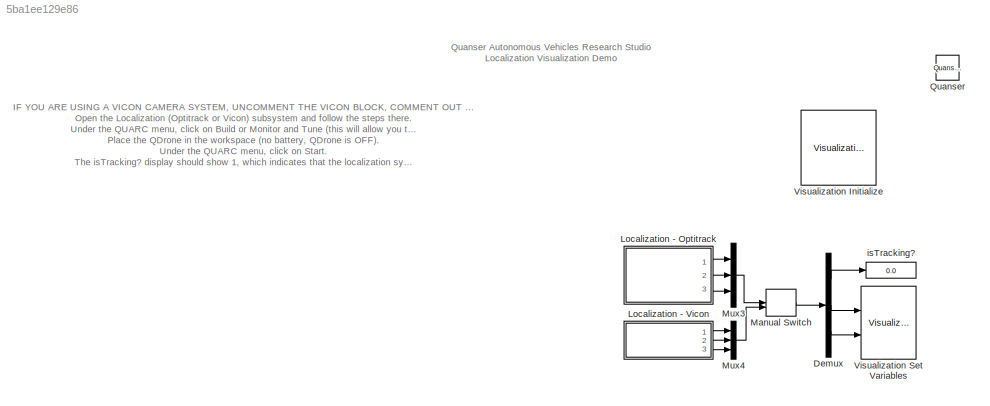
MODEL slx_5ba1ee129e86
KIND model
CONFIG AbsTol = auto
CONFIG EnableMultiTasking = on
CONFIG FixedStep = 0.001
CONFIG MaxStep = auto
CONFIG MinStep = auto
CONFIG RelTol = 1e-3
CONFIG SampleTimeConstraint = Unconstrained
CONFIG Solver = FixedStepDiscrete
CONFIG SolverName = FixedStepDiscrete
CONFIG StartTime = 0.0
CONFIG StopTime = inf
BLOCK [Demux] Demux
  Outputs = [1 3 3]
  Ports = [1, 3]
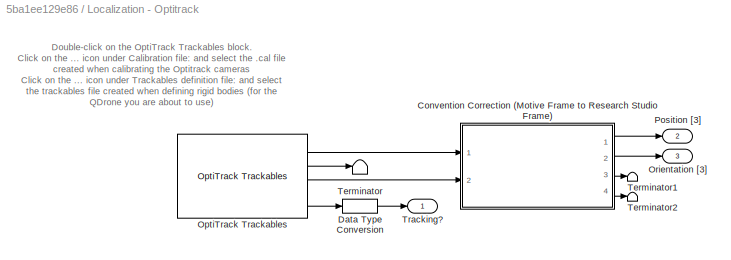
BLOCK [SubSystem] Localization - Optitrack
  Ports = [0, 3]
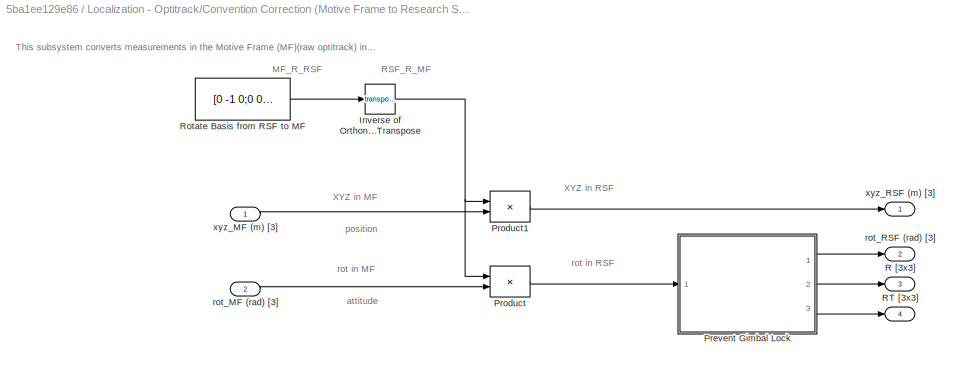
BLOCK [SubSystem] Localization - Optitrack/Convention Correction (Motive Frame to Research Studio Frame)
  Ports = [2, 4]
BLOCK [Math] Localization - Optitrack/Convention Correction (Motive Frame to Research Studio Frame)/Inverse of Orthonormal Matrix is its Transpose
  Operator = transpose
  Ports = [1, 1]
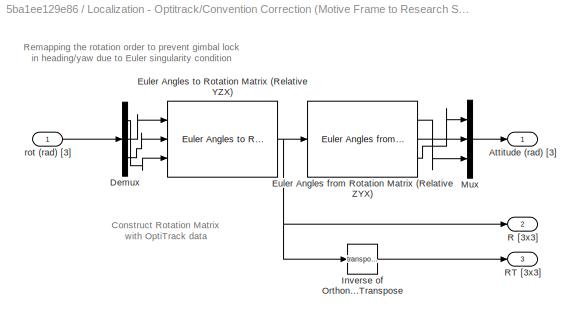
BLOCK [SubSystem] Localization - Optitrack/Convention Correction (Motive Frame to Research Studio Frame)/Prevent Gimbal Lock
  Ports = [1, 3]
BLOCK [Outport] Localization - Optitrack/Convention Correction (Motive Frame to Research Studio Frame)/Prevent Gimbal Lock/Attitude (rad) [3]
  VectorParamsAs1DForOutWhenUnconnected = off
BLOCK [Demux] Localization - Optitrack/Convention Correction (Motive Frame to Research Studio Frame)/Prevent Gimbal Lock/Demux
  Outputs = 3
  Ports = [1, 3]
BLOCK [Reference] Localization - Optitrack/Convention Correction (Motive Frame to Research Studio Frame)/Prevent Gimbal Lock/Euler Angles from Rotation Matrix (Relative ZYX)  REF=quarc_library/Math Operations/Matrices/Euler Angles from
Rotation Matrix
  Ports = [1, 3]
  SourceBlock = quarc_library/Math Operations/Matrices/Euler Angles from\nRotation Matrix
  SourceProductName = QUARC Targets
  SourceType = Euler Angles from Rotation Matrix
BLOCK [Reference] Localization - Optitrack/Convention Correction (Motive Frame to Research Studio Frame)/Prevent Gimbal Lock/Euler Angles to Rotation Matrix (Relative YZX)  REF=quarc_library/Math Operations/Matrices/Euler Angles to
Rotation Matrix
  Ports = [3, 1]
  SourceBlock = quarc_library/Math Operations/Matrices/Euler Angles to\nRotation Matrix
  SourceProductName = QUARC Targets
  SourceType = Euler Angles to Rotation Matrix
BLOCK [Math] Localization - Optitrack/Convention Correction (Motive Frame to Research Studio Frame)/Prevent Gimbal Lock/Inverse of Orthonormal Matrix is its Transpose
  Operator = transpose
  Ports = [1, 1]
BLOCK [Mux] Localization - Optitrack/Convention Correction (Motive Frame to Research Studio Frame)/Prevent Gimbal Lock/Mux
  DisplayOption = bar
  Inputs = 3
  Ports = [3, 1]
BLOCK [Outport] Localization - Optitrack/Convention Correction (Motive Frame to Research Studio Frame)/Prevent Gimbal Lock/R [3x3]
  Port = 2
  VectorParamsAs1DForOutWhenUnconnected = off
BLOCK [Outport] Localization - Optitrack/Convention Correction (Motive Frame to Research Studio Frame)/Prevent Gimbal Lock/RT [3x3]
  Port = 3
  VectorParamsAs1DForOutWhenUnconnected = off
BLOCK [Inport] Localization - Optitrack/Convention Correction (Motive Frame to Research Studio Frame)/Prevent Gimbal Lock/rot (rad) [3]
BLOCK [Product] Localization - Optitrack/Convention Correction (Motive Frame to Research Studio Frame)/Product
  Multiplication = Matrix(*)
  Ports = [2, 1]
BLOCK [Product] Localization - Optitrack/Convention Correction (Motive Frame to Research Studio Frame)/Product1
  Multiplication = Matrix(*)
  Ports = [2, 1]
BLOCK [Outport] Localization - Optitrack/Convention Correction (Motive Frame to Research Studio Frame)/R [3x3]
  Port = 3
  VectorParamsAs1DForOutWhenUnconnected = off
BLOCK [Outport] Localization - Optitrack/Convention Correction (Motive Frame to Research Studio Frame)/RT [3x3]
  Port = 4
  VectorParamsAs1DForOutWhenUnconnected = off
BLOCK [Constant] Localization - Optitrack/Convention Correction (Motive Frame to Research Studio Frame)/Rotate Basis from RSF to MF
  Value = [0 -1 0;0 0 1;-1 0 0]
BLOCK [Inport] Localization - Optitrack/Convention Correction (Motive Frame to Research Studio Frame)/rot_MF (rad) [3]
  Port = 2
BLOCK [Outport] Localization - Optitrack/Convention Correction (Motive Frame to Research Studio Frame)/rot_RSF (rad) [3]
  Port = 2
  VectorParamsAs1DForOutWhenUnconnected = off
BLOCK [Inport] Localization - Optitrack/Convention Correction (Motive Frame to Research Studio Frame)/xyz_MF (m) [3]
BLOCK [Outport] Localization - Optitrack/Convention Correction (Motive Frame to Research Studio Frame)/xyz_RSF (m) [3]
  VectorParamsAs1DForOutWhenUnconnected = off
BLOCK [DataTypeConversion] Localization - Optitrack/Data Type Conversion
  RndMeth = Floor
  SaturateOnIntegerOverflow = off
BLOCK [Reference] Localization - Optitrack/OptiTrack Trackables  REF=quarc_library/Devices/Third-Party/NaturalPoint/OptiTrack/OptiTrack Trackables
  Ports = [0, 4]
  SourceBlock = quarc_library/Devices/Third-Party/NaturalPoint/OptiTrack/OptiTrack Trackables
  SourceProductName = QUARC Targets
  SourceType = OptiTrack Rigid Body Position
BLOCK [Outport] Localization - Optitrack/Orientation [3]
  Port = 3
  VectorParamsAs1DForOutWhenUnconnected = off
BLOCK [Outport] Localization - Optitrack/Position [3]
  Port = 2
  VectorParamsAs1DForOutWhenUnconnected = off
BLOCK [Terminator] Localization - Optitrack/Terminator
BLOCK [Terminator] Localization - Optitrack/Terminator1
BLOCK [Terminator] Localization - Optitrack/Terminator2
BLOCK [Outport] Localization - Optitrack/Tracking?
  VectorParamsAs1DForOutWhenUnconnected = off
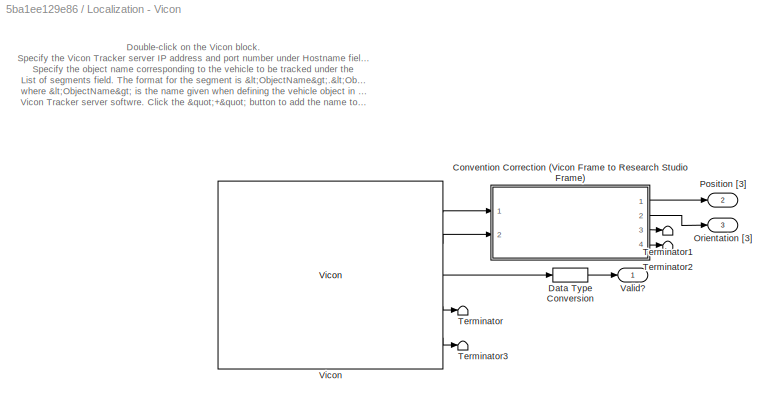
BLOCK [SubSystem] Localization - Vicon
  Commented = on
  Ports = [0, 3]
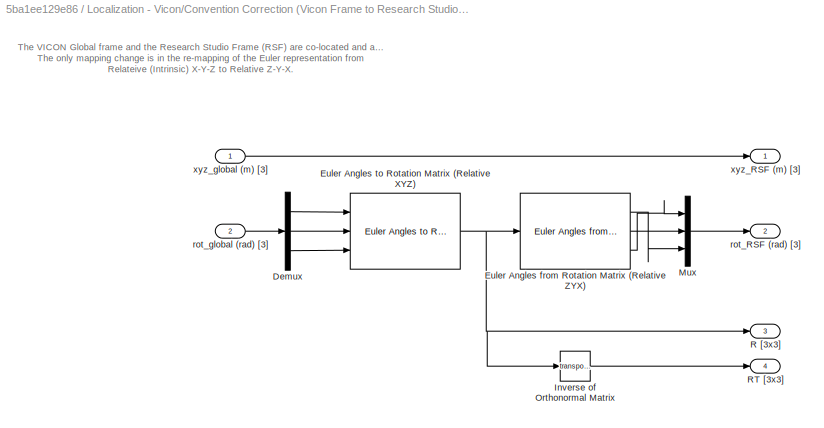
BLOCK [SubSystem] Localization - Vicon/Convention Correction (Vicon Frame to Research Studio Frame)
  Ports = [2, 4]
BLOCK [Demux] Localization - Vicon/Convention Correction (Vicon Frame to Research Studio Frame)/Demux
  Outputs = 3
  Ports = [1, 3]
BLOCK [Reference] Localization - Vicon/Convention Correction (Vicon Frame to Research Studio Frame)/Euler Angles from Rotation Matrix (Relative ZYX)  REF=quarc_library/Math Operations/Matrices/Euler Angles from
Rotation Matrix
  Ports = [1, 3]
  SourceBlock = quarc_library/Math Operations/Matrices/Euler Angles from\nRotation Matrix
  SourceProductName = QUARC Targets
  SourceType = Euler Angles from Rotation Matrix
BLOCK [Reference] Localization - Vicon/Convention Correction (Vicon Frame to Research Studio Frame)/Euler Angles to Rotation Matrix (Relative XYZ)  REF=quarc_library/Math Operations/Matrices/Euler Angles to
Rotation Matrix
  Ports = [3, 1]
  SourceBlock = quarc_library/Math Operations/Matrices/Euler Angles to\nRotation Matrix
  SourceProductName = QUARC Targets
  SourceType = Euler Angles to Rotation Matrix
BLOCK [Math] Localization - Vicon/Convention Correction (Vicon Frame to Research Studio Frame)/Inverse of Orthonormal Matrix
  Operator = transpose
  Ports = [1, 1]
BLOCK [Mux] Localization - Vicon/Convention Correction (Vicon Frame to Research Studio Frame)/Mux
  DisplayOption = bar
  Inputs = 3
  Ports = [3, 1]
BLOCK [Outport] Localization - Vicon/Convention Correction (Vicon Frame to Research Studio Frame)/R [3x3]
  Port = 3
  VectorParamsAs1DForOutWhenUnconnected = off
BLOCK [Outport] Localization - Vicon/Convention Correction (Vicon Frame to Research Studio Frame)/RT [3x3]
  Port = 4
  VectorParamsAs1DForOutWhenUnconnected = off
BLOCK [Outport] Localization - Vicon/Convention Correction (Vicon Frame to Research Studio Frame)/rot_RSF (rad) [3]
  Port = 2
  VectorParamsAs1DForOutWhenUnconnected = off
BLOCK [Inport] Localization - Vicon/Convention Correction (Vicon Frame to Research Studio Frame)/rot_global (rad) [3]
  Port = 2
BLOCK [Outport] Localization - Vicon/Convention Correction (Vicon Frame to Research Studio Frame)/xyz_RSF (m) [3]
  VectorParamsAs1DForOutWhenUnconnected = off
BLOCK [Inport] Localization - Vicon/Convention Correction (Vicon Frame to Research Studio Frame)/xyz_global (m) [3]
BLOCK [DataTypeConversion] Localization - Vicon/Data Type Conversion
  RndMeth = Floor
  SaturateOnIntegerOverflow = off
BLOCK [Outport] Localization - Vicon/Orientation [3]
  Port = 3
  VectorParamsAs1DForOutWhenUnconnected = off
BLOCK [Outport] Localization - Vicon/Position [3]
  Port = 2
  VectorParamsAs1DForOutWhenUnconnected = off
BLOCK [Terminator] Localization - Vicon/Terminator
BLOCK [Terminator] Localization - Vicon/Terminator1
BLOCK [Terminator] Localization - Vicon/Terminator2
BLOCK [Terminator] Localization - Vicon/Terminator3
BLOCK [Outport] Localization - Vicon/Valid?
  VectorParamsAs1DForOutWhenUnconnected = off
BLOCK [Reference] Localization - Vicon/Vicon  REF=quarc_library/Devices/Third-Party/Vicon/Vicon
  Ports = [0, 5]
  SourceBlock = quarc_library/Devices/Third-Party/Vicon/Vicon
  SourceProductName = QUARC Targets
  SourceType = Vicon
BLOCK [ManualSwitch] Manual Switch
BLOCK [Mux] Mux3
  DisplayOption = bar
  Inputs = [1 3 3]
  Ports = [3, 1]
BLOCK [Mux] Mux4
  DisplayOption = bar
  Inputs = [1 3 3]
  Ports = [3, 1]
BLOCK [Reference] Quanser  REF=quarc_library/Logos/Quanser
  Ports = []
  SourceBlock = quarc_library/Logos/Quanser
  SourceProductName = QUARC Targets
  SourceType = Powered by Quanser
BLOCK [Reference] Visualization Initialize  REF=quarc_library/User Interface/Visualization/Visualization Initialize
  AttributesFormatString = %<object_name>
  Ports = []
  SourceBlock = quarc_library/User Interface/Visualization/Visualization Initialize
  SourceProductName = QUARC Targets
  SourceType = Visualization Initialize
BLOCK [Reference] Visualization Set Variables  REF=quarc_library/User Interface/Visualization/Visualization Set Variables
  AttributesFormatString = (%<object_name>)
  Ports = [2]
  SourceBlock = quarc_library/User Interface/Visualization/Visualization Set Variables
  SourceProductName = QUARC Targets
  SourceType = Visualization Set Variables
BLOCK [Display] isTracking?
  Decimation = 1
  Ports = [1]
ANNOTATION (root): IF YOU ARE USING A VICON CAMERA SYSTEM, UNCOMMENT THE VICON BLOCK, COMMENT OUT THE OPTITRACK ONE AND FLIP THE MANUAL SWITCH. Open the Localization (Optitrack or Vicon) subsystem and follow the steps there. Under the QUARC menu, click on Build or Monitor and Tune (this will allow you to skip step 3). Place the QDrone in the workspace (no battery, QDrone is OFF). Under the QUARC menu, click on Start...<+1208ch>
ANNOTATION (root): Quanser Autonomous Vehicles Research Studio Localization Visualization Demo
ANNOTATION Localization - Optitrack: Double-click on the OptiTrack Trackables block. Click on the ... icon under Calibration file: and select the .cal file created when calibrating the Optitrack cameras Click on the ... icon under Trackables definition file: and select the trackables file created when defining rigid bodies (for the QDrone you are about to use)
ANNOTATION Localization - Optitrack/Convention Correction (Motive Frame to Research Studio Frame): This subsystem converts measurements in the Motive Frame (MF)(raw optitrack) into the Research Studio Frame (RSF).
ANNOTATION Localization - Optitrack/Convention Correction (Motive Frame to Research Studio Frame): MF_R_RSF
ANNOTATION Localization - Optitrack/Convention Correction (Motive Frame to Research Studio Frame): RSF_R_MF
ANNOTATION Localization - Optitrack/Convention Correction (Motive Frame to Research Studio Frame): XYZ in MF
ANNOTATION Localization - Optitrack/Convention Correction (Motive Frame to Research Studio Frame): XYZ in RSF
ANNOTATION Localization - Optitrack/Convention Correction (Motive Frame to Research Studio Frame): attitude
ANNOTATION Localization - Optitrack/Convention Correction (Motive Frame to Research Studio Frame): position
ANNOTATION Localization - Optitrack/Convention Correction (Motive Frame to Research Studio Frame): rot in MF
ANNOTATION Localization - Optitrack/Convention Correction (Motive Frame to Research Studio Frame): rot in RSF
ANNOTATION Localization - Optitrack/Convention Correction (Motive Frame to Research Studio Frame)/Prevent Gimbal Lock: Remapping the rotation order to prevent gimbal lock in heading/yaw due to Euler singularity condition
ANNOTATION Localization - Optitrack/Convention Correction (Motive Frame to Research Studio Frame)/Prevent Gimbal Lock: Construct Rotation Matrix with OptiTrack data
ANNOTATION Localization - Vicon: Double-click on the Vicon block. Specify the Vicon Tracker server IP address and port number under Hostname field. Specify the object name corresponding to the vehicle to be tracked under the List of segments field. The format for the segment is <ObjectName>.<ObjectName> where <ObjectName> is the name given when defining the vehicle object in the Vicon Tracker server softwre. Click the "+" button ...<+148ch>
ANNOTATION Localization - Vicon/Convention Correction (Vicon Frame to Research Studio Frame): The VICON Global frame and the Research Studio Frame (RSF) are co-located and aligned. The only mapping change is in the re-mapping of the Euler representation from Relateive (Intrinsic) X-Y-Z to Relative Z-Y-X.
LINE Demux:1 -> isTracking?:1
LINE Demux:2 -> Visualization Set Variables:1
LINE Demux:3 -> Visualization Set Variables:2
NET Localization - Optitrack/Convention Correction (Motive Frame to Research Studio Frame)/Inverse of Orthonormal Matrix is its Transpose:1 -> Localization - Optitrack/Convention Correction (Motive Frame to Research Studio Frame)/Product1:1, Localization - Optitrack/Convention Correction (Motive Frame to Research Studio Frame)/Product:1
LINE Localization - Optitrack/Convention Correction (Motive Frame to Research Studio Frame)/Prevent Gimbal Lock/Demux:1 -> Localization - Optitrack/Convention Correction (Motive Frame to Research Studio Frame)/Prevent Gimbal Lock/Euler Angles to Rotation Matrix (Relative YZX):3
LINE Localization - Optitrack/Convention Correction (Motive Frame to Research Studio Frame)/Prevent Gimbal Lock/Demux:2 -> Localization - Optitrack/Convention Correction (Motive Frame to Research Studio Frame)/Prevent Gimbal Lock/Euler Angles to Rotation Matrix (Relative YZX):1
LINE Localization - Optitrack/Convention Correction (Motive Frame to Research Studio Frame)/Prevent Gimbal Lock/Demux:3 -> Localization - Optitrack/Convention Correction (Motive Frame to Research Studio Frame)/Prevent Gimbal Lock/Euler Angles to Rotation Matrix (Relative YZX):2
LINE Localization - Optitrack/Convention Correction (Motive Frame to Research Studio Frame)/Prevent Gimbal Lock/Euler Angles from Rotation Matrix (Relative ZYX):1 -> Localization - Optitrack/Convention Correction (Motive Frame to Research Studio Frame)/Prevent Gimbal Lock/Mux:3
LINE Localization - Optitrack/Convention Correction (Motive Frame to Research Studio Frame)/Prevent Gimbal Lock/Euler Angles from Rotation Matrix (Relative ZYX):2 -> Localization - Optitrack/Convention Correction (Motive Frame to Research Studio Frame)/Prevent Gimbal Lock/Mux:2
LINE Localization - Optitrack/Convention Correction (Motive Frame to Research Studio Frame)/Prevent Gimbal Lock/Euler Angles from Rotation Matrix (Relative ZYX):3 -> Localization - Optitrack/Convention Correction (Motive Frame to Research Studio Frame)/Prevent Gimbal Lock/Mux:1
NET Localization - Optitrack/Convention Correction (Motive Frame to Research Studio Frame)/Prevent Gimbal Lock/Euler Angles to Rotation Matrix (Relative YZX):1 -> Localization - Optitrack/Convention Correction (Motive Frame to Research Studio Frame)/Prevent Gimbal Lock/Euler Angles from Rotation Matrix (Relative ZYX):1, Localization - Optitrack/Convention Correction (Motive Frame to Research Studio Frame)/Prevent Gimbal Lock/Inverse of Orthonormal Matrix is its Transpose:1, Localization - Optitrack/Convention Correction (Motive Frame to Research Studio Frame)/Prevent Gimbal Lock/R [3x3]:1
LINE Localization - Optitrack/Convention Correction (Motive Frame to Research Studio Frame)/Prevent Gimbal Lock/Inverse of Orthonormal Matrix is its Transpose:1 -> Localization - Optitrack/Convention Correction (Motive Frame to Research Studio Frame)/Prevent Gimbal Lock/RT [3x3]:1
LINE Localization - Optitrack/Convention Correction (Motive Frame to Research Studio Frame)/Prevent Gimbal Lock/Mux:1 -> Localization - Optitrack/Convention Correction (Motive Frame to Research Studio Frame)/Prevent Gimbal Lock/Attitude (rad) [3]:1
LINE Localization - Optitrack/Convention Correction (Motive Frame to Research Studio Frame)/Prevent Gimbal Lock/rot (rad) [3]:1 -> Localization - Optitrack/Convention Correction (Motive Frame to Research Studio Frame)/Prevent Gimbal Lock/Demux:1
LINE Localization - Optitrack/Convention Correction (Motive Frame to Research Studio Frame)/Prevent Gimbal Lock:1 -> Localization - Optitrack/Convention Correction (Motive Frame to Research Studio Frame)/rot_RSF (rad) [3]:1
LINE Localization - Optitrack/Convention Correction (Motive Frame to Research Studio Frame)/Prevent Gimbal Lock:2 -> Localization - Optitrack/Convention Correction (Motive Frame to Research Studio Frame)/R [3x3]:1
LINE Localization - Optitrack/Convention Correction (Motive Frame to Research Studio Frame)/Prevent Gimbal Lock:3 -> Localization - Optitrack/Convention Correction (Motive Frame to Research Studio Frame)/RT [3x3]:1
LINE Localization - Optitrack/Convention Correction (Motive Frame to Research Studio Frame)/Product1:1 -> Localization - Optitrack/Convention Correction (Motive Frame to Research Studio Frame)/xyz_RSF (m) [3]:1
LINE Localization - Optitrack/Convention Correction (Motive Frame to Research Studio Frame)/Product:1 -> Localization - Optitrack/Convention Correction (Motive Frame to Research Studio Frame)/Prevent Gimbal Lock:1
LINE Localization - Optitrack/Convention Correction (Motive Frame to Research Studio Frame)/Rotate Basis from RSF to MF:1 -> Localization - Optitrack/Convention Correction (Motive Frame to Research Studio Frame)/Inverse of Orthonormal Matrix is its Transpose:1
LINE Localization - Optitrack/Convention Correction (Motive Frame to Research Studio Frame)/rot_MF (rad) [3]:1 -> Localization - Optitrack/Convention Correction (Motive Frame to Research Studio Frame)/Product:2
LINE Localization - Optitrack/Convention Correction (Motive Frame to Research Studio Frame)/xyz_MF (m) [3]:1 -> Localization - Optitrack/Convention Correction (Motive Frame to Research Studio Frame)/Product1:2
LINE Localization - Optitrack/Convention Correction (Motive Frame to Research Studio Frame):1 -> Localization - Optitrack/Position [3]:1
LINE Localization - Optitrack/Convention Correction (Motive Frame to Research Studio Frame):2 -> Localization - Optitrack/Orientation [3]:1
LINE Localization - Optitrack/Convention Correction (Motive Frame to Research Studio Frame):3 -> Localization - Optitrack/Terminator1:1
LINE Localization - Optitrack/Convention Correction (Motive Frame to Research Studio Frame):4 -> Localization - Optitrack/Terminator2:1
LINE Localization - Optitrack/Data Type Conversion:1 -> Localization - Optitrack/Tracking?:1
LINE Localization - Optitrack/OptiTrack Trackables:1 -> Localization - Optitrack/Convention Correction (Motive Frame to Research Studio Frame):1
LINE Localization - Optitrack/OptiTrack Trackables:2 -> Localization - Optitrack/Terminator:1
LINE Localization - Optitrack/OptiTrack Trackables:3 -> Localization - Optitrack/Convention Correction (Motive Frame to Research Studio Frame):2
LINE Localization - Optitrack/OptiTrack Trackables:4 -> Localization - Optitrack/Data Type Conversion:1
LINE Localization - Optitrack:1 -> Mux3:1
LINE Localization - Optitrack:2 -> Mux3:2
LINE Localization - Optitrack:3 -> Mux3:3
LINE Localization - Vicon/Convention Correction (Vicon Frame to Research Studio Frame)/Demux:1 -> Localization - Vicon/Convention Correction (Vicon Frame to Research Studio Frame)/Euler Angles to Rotation Matrix (Relative XYZ):1
LINE Localization - Vicon/Convention Correction (Vicon Frame to Research Studio Frame)/Demux:2 -> Localization - Vicon/Convention Correction (Vicon Frame to Research Studio Frame)/Euler Angles to Rotation Matrix (Relative XYZ):2
LINE Localization - Vicon/Convention Correction (Vicon Frame to Research Studio Frame)/Demux:3 -> Localization - Vicon/Convention Correction (Vicon Frame to Research Studio Frame)/Euler Angles to Rotation Matrix (Relative XYZ):3
LINE Localization - Vicon/Convention Correction (Vicon Frame to Research Studio Frame)/Euler Angles from Rotation Matrix (Relative ZYX):1 -> Localization - Vicon/Convention Correction (Vicon Frame to Research Studio Frame)/Mux:3
LINE Localization - Vicon/Convention Correction (Vicon Frame to Research Studio Frame)/Euler Angles from Rotation Matrix (Relative ZYX):2 -> Localization - Vicon/Convention Correction (Vicon Frame to Research Studio Frame)/Mux:2
LINE Localization - Vicon/Convention Correction (Vicon Frame to Research Studio Frame)/Euler Angles from Rotation Matrix (Relative ZYX):3 -> Localization - Vicon/Convention Correction (Vicon Frame to Research Studio Frame)/Mux:1
NET Localization - Vicon/Convention Correction (Vicon Frame to Research Studio Frame)/Euler Angles to Rotation Matrix (Relative XYZ):1 -> Localization - Vicon/Convention Correction (Vicon Frame to Research Studio Frame)/Euler Angles from Rotation Matrix (Relative ZYX):1, Localization - Vicon/Convention Correction (Vicon Frame to Research Studio Frame)/Inverse of Orthonormal Matrix:1, Localization - Vicon/Convention Correction (Vicon Frame to Research Studio Frame)/R [3x3]:1
LINE Localization - Vicon/Convention Correction (Vicon Frame to Research Studio Frame)/Inverse of Orthonormal Matrix:1 -> Localization - Vicon/Convention Correction (Vicon Frame to Research Studio Frame)/RT [3x3]:1
LINE Localization - Vicon/Convention Correction (Vicon Frame to Research Studio Frame)/Mux:1 -> Localization - Vicon/Convention Correction (Vicon Frame to Research Studio Frame)/rot_RSF (rad) [3]:1
LINE Localization - Vicon/Convention Correction (Vicon Frame to Research Studio Frame)/rot_global (rad) [3]:1 -> Localization - Vicon/Convention Correction (Vicon Frame to Research Studio Frame)/Demux:1
LINE Localization - Vicon/Convention Correction (Vicon Frame to Research Studio Frame)/xyz_global (m) [3]:1 -> Localization - Vicon/Convention Correction (Vicon Frame to Research Studio Frame)/xyz_RSF (m) [3]:1
LINE Localization - Vicon/Convention Correction (Vicon Frame to Research Studio Frame):1 -> Localization - Vicon/Position [3]:1
LINE Localization - Vicon/Convention Correction (Vicon Frame to Research Studio Frame):2 -> Localization - Vicon/Orientation [3]:1
LINE Localization - Vicon/Convention Correction (Vicon Frame to Research Studio Frame):3 -> Localization - Vicon/Terminator1:1
LINE Localization - Vicon/Convention Correction (Vicon Frame to Research Studio Frame):4 -> Localization - Vicon/Terminator2:1
LINE Localization - Vicon/Data Type Conversion:1 -> Localization - Vicon/Valid?:1
LINE Localization - Vicon/Vicon:1 -> Localization - Vicon/Convention Correction (Vicon Frame to Research Studio Frame):1
LINE Localization - Vicon/Vicon:2 -> Localization - Vicon/Convention Correction (Vicon Frame to Research Studio Frame):2
LINE Localization - Vicon/Vicon:3 -> Localization - Vicon/Data Type Conversion:1
LINE Localization - Vicon/Vicon:4 -> Localization - Vicon/Terminator:1
LINE Localization - Vicon/Vicon:5 -> Localization - Vicon/Terminator3:1
LINE Localization - Vicon:1 -> Mux4:1
LINE Localization - Vicon:2 -> Mux4:2
LINE Localization - Vicon:3 -> Mux4:3
LINE Manual Switch:1 -> Demux:1
LINE Mux3:1 -> Manual Switch:1
LINE Mux4:1 -> Manual Switch:2
note: NET lines group one-source signal fan-out (src -> all destinations, sorted); 1:1 wires keep LINE
